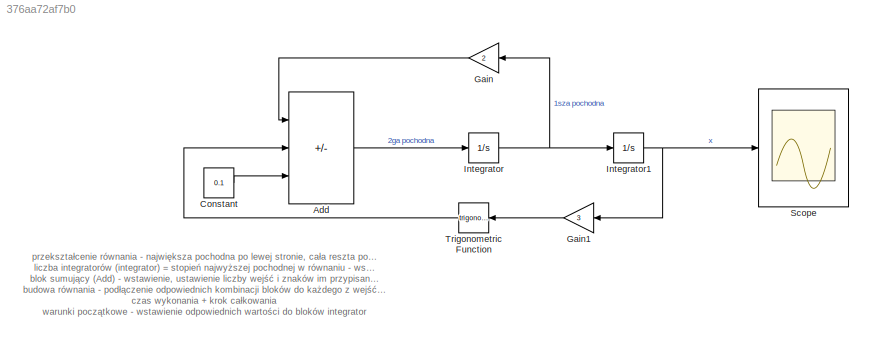
MODEL slx_376aa72af7b0
KIND model
CONFIG AbsTol = auto
CONFIG EnableMultiTasking = off
CONFIG FixedStep = auto
CONFIG MaxStep = auto
CONFIG MinStep = auto
CONFIG RelTol = 1e-3
CONFIG SampleTimeConstraint = Unconstrained
CONFIG SolverName = VariableStepAuto
CONFIG StartTime = 0.0
CONFIG StopTime = 10.0
BLOCK [Sum] Add
  IconShape = rectangular
  Inputs = --+
BLOCK [Constant] Constant
  Value = 0.1
BLOCK [Gain] Gain
  Gain = 2
  NameLocation = top
BLOCK [Gain] Gain1
  Gain = 3
  NameLocation = top
BLOCK [Integrator] Integrator
  InitialCondition = 2
BLOCK [Integrator] Integrator1
BLOCK [Scope] Scope
  Floating = off
  NumInputPorts = 1
  ScopeSpecificationString = Simulink.scopes.TimeScopeBlockCfg('CurrentConfiguration', extmgr.ConfigurationSet(extmgr.Configuration('Core','General UI',true),extmgr.Configuration('Core','Source UI',true),extmgr.Configuration('Sources','WiredSimulink',true),extmgr.Configuration('Visuals','Time Domain',true,'SerializedDisplays',{struct('MinYLimReal','-0.09421','MaxYLimReal','0.75086','YLabelReal','','MinYLimMag','0.00000','MaxY...<+1439ch>
BLOCK [Trigonometry] Trigonometric Function
  NameLocation = top
ANNOTATION (root): przekształcenie równania - największa pochodna po lewej stronie, cała reszta po prawej stronie znaku równości liczba integratorów (integrator) = stopień najwyższej pochodnej w równaniu - wstawianie + połączenie blok sumujący (Add) - wstawienie, ustawienie liczby wejść i znaków im przypisanch budowa równania - podłączenie odpowiednich kombinacji bloków do każdego z wejść bloczka add czas wykonania ...<+159ch>
LINE Add:1 -> Integrator:1
LINE Constant:1 -> Add:3
LINE Gain1:1 -> Trigonometric Function:1
LINE Gain:1 -> Add:1
NET Integrator1:1 -> Gain1:1, Scope:1
NET Integrator:1 -> Gain:1, Integrator1:1
LINE Trigonometric Function:1 -> Add:2
note: NET lines group one-source signal fan-out (src -> all destinations, sorted); 1:1 wires keep LINE
